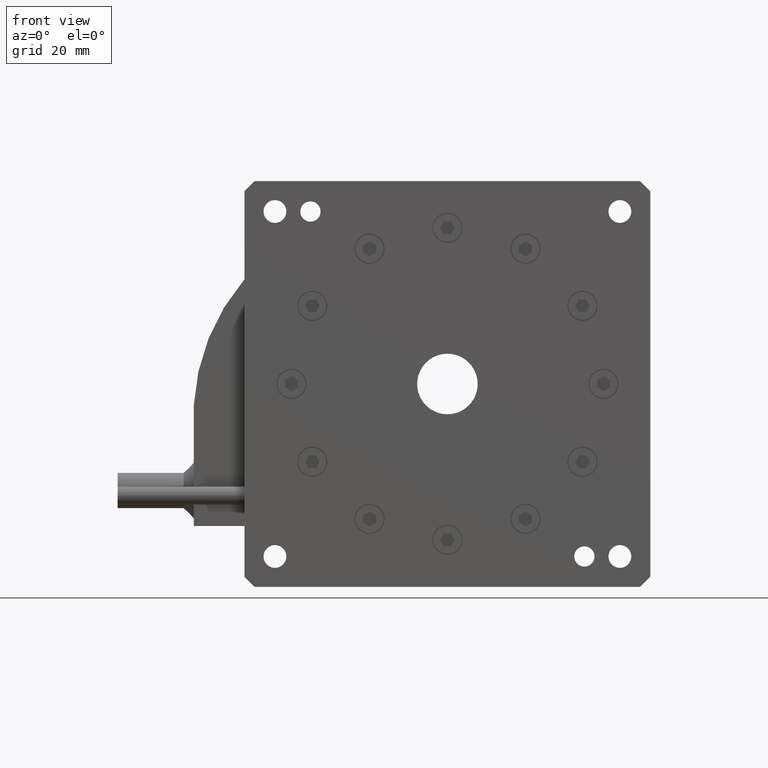
[diagram: clean part render]
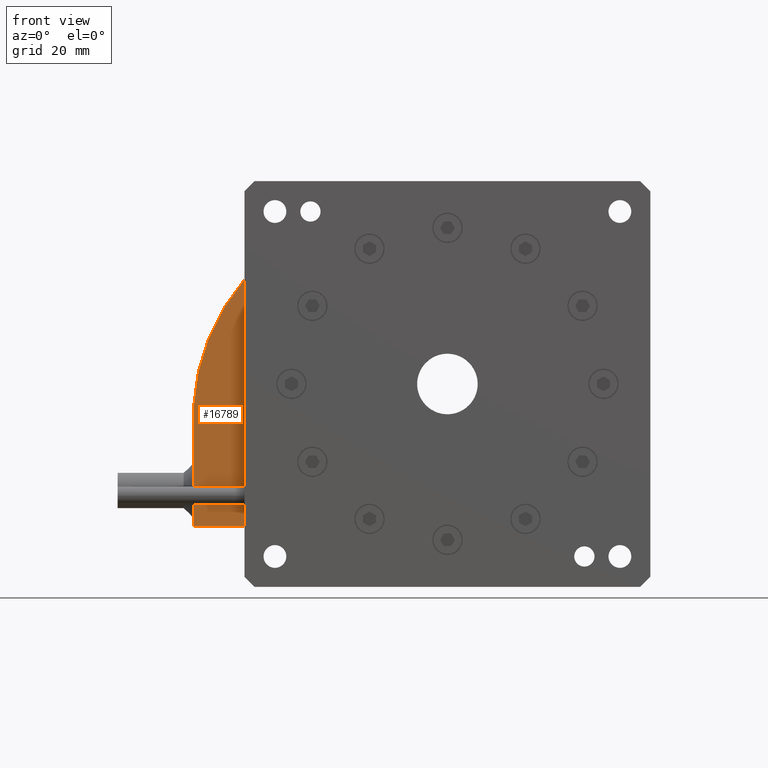
[diagram: same view with one face highlighted and labeled with its STEP entity id]
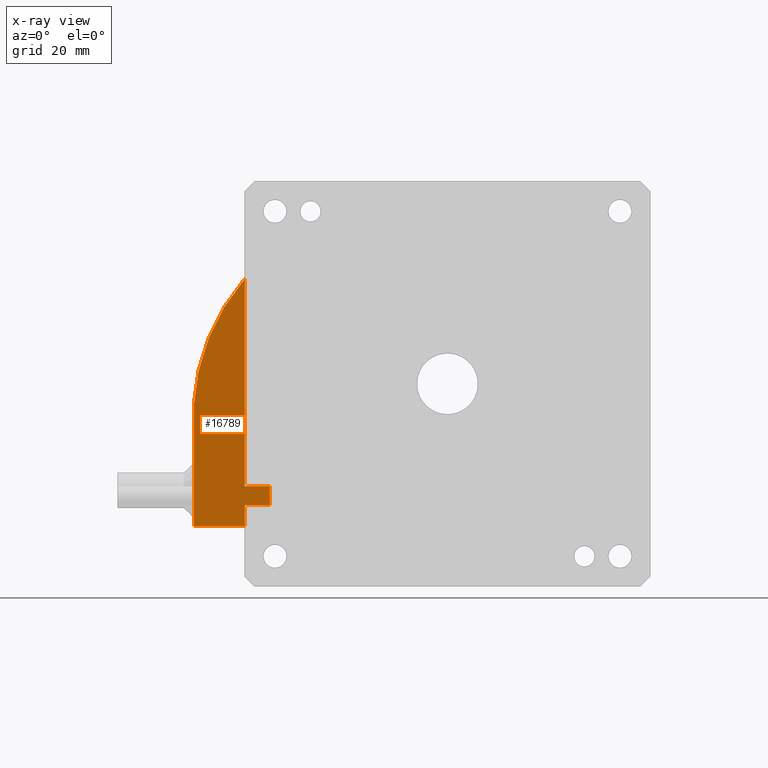
[diagram: x-ray of the same camera — body ghosted, the highlighted face saturated]
A machine part, front view. The second image highlights one B-rep face of the part: STEP entity #16789.
The next image is the same camera in x-ray: the body ghosted, the highlighted face saturated — about 0% of this face is hidden behind the body in this view.
In plain terms, the highlighted planar face has unit normal (-0, 1, -0).
Its self-contained STEP definition (entity closure, byte-faithful):
#263 = VERTEX_POINT ( 'NONE', #18896 ) ;
#327 = CARTESIAN_POINT ( 'NONE',  ( -10.00000000000000900, 10.50000000000000000, 40.00000000000001400 ) ) ;
#384 = CARTESIAN_POINT ( 'NONE',  ( -6.938893903907228400E-015, 10.50000000000000000, 80.00000000000001400 ) ) ;
#783 = LINE ( 'NONE', #10907, #15314 ) ;
#1483 = CARTESIAN_POINT ( 'NONE',  ( 39.99999999999999300, 10.50000000000000000, 40.00000000000001400 ) ) ;
#2610 = ORIENTED_EDGE ( 'NONE', *, *, #18290, .F. ) ;
#3072 = ORIENTED_EDGE ( 'NONE', *, *, #14688, .F. ) ;
#3453 = PLANE ( 'NONE',  #14177 ) ;
#3459 = EDGE_CURVE ( 'NONE', #20131, #21554, #12764, .T. ) ;
#3829 = VECTOR ( 'NONE', #17125, 1000.000000000000000 ) ;
#3952 = DIRECTION ( 'NONE',  ( -1.000000000000000000, -2.465190328815661900E-032, -3.572850611589495400E-017 ) ) ;
#3992 = CARTESIAN_POINT ( 'NONE',  ( 4.999999999999990200, 10.50000000000000000, 19.85000000000000500 ) ) ;
#4467 = VERTEX_POINT ( 'NONE', #7171 ) ;
#4509 = CARTESIAN_POINT ( 'NONE',  ( -10.00000000000001600, 10.50000000000000000, 12.00000000000001800 ) ) ;
#4817 = CARTESIAN_POINT ( 'NONE',  ( -10.00000000000000900, 10.50000000000000000, 35.75552320048093700 ) ) ;
#5063 = LINE ( 'NONE', #19293, #3829 ) ;
#5116 = ORIENTED_EDGE ( 'NONE', *, *, #18071, .F. ) ;
#5936 = VECTOR ( 'NONE', #3952, 1000.000000000000000 ) ;
#6148 = EDGE_CURVE ( 'NONE', #4467, #263, #13682, .T. ) ;
#6222 = DIRECTION ( 'NONE',  ( 3.572850611589497800E-017, -2.736911063134407700E-048, -1.000000000000000000 ) ) ;
#7171 = CARTESIAN_POINT ( 'NONE',  ( 4.999999999999990200, 10.50000000000000000, 19.85000000000000500 ) ) ;
#7308 = CARTESIAN_POINT ( 'NONE',  ( 31.49999999999999300, 10.50000000000000000, 33.50000000000001400 ) ) ;
#7869 = CARTESIAN_POINT ( 'NONE',  ( -6.938893903907228400E-015, 10.50000000000000000, 12.00000000000001800 ) ) ;
#8167 = CARTESIAN_POINT ( 'NONE',  ( -6.938893903907228400E-015, 10.50000000000000000, 16.15000000000000600 ) ) ;
#8763 = VERTEX_POINT ( 'NONE', #17444 ) ;
#9140 = DIRECTION ( 'NONE',  ( 0.0000000000000000000, 0.0000000000000000000, 1.000000000000000000 ) ) ;
#9562 = DIRECTION ( 'NONE',  ( -2.465190328815661900E-032, 1.000000000000000000, -3.617686740533762700E-048 ) ) ;
#9580 = VECTOR ( 'NONE', #6222, 1000.000000000000000 ) ;
#10282 = VECTOR ( 'NONE', #15755, 1000.000000000000000 ) ;
#10907 = CARTESIAN_POINT ( 'NONE',  ( -6.938893903907228400E-015, 10.50000000000000000, 80.00000000000001400 ) ) ;
#10975 = VECTOR ( 'NONE', #23222, 1000.000000000000000 ) ;
#11782 = LINE ( 'NONE', #13437, #5936 ) ;
#12331 = CIRCLE ( 'NONE', #22493, 41.56124859659425400 ) ;
#12764 = LINE ( 'NONE', #327, #17448 ) ;
#13437 = CARTESIAN_POINT ( 'NONE',  ( 39.99999999999999300, 10.50000000000000000, 12.00000000000002100 ) ) ;
#13682 = LINE ( 'NONE', #3992, #10282 ) ;
#13760 = LINE ( 'NONE', #17207, #10975 ) ;
#14177 = AXIS2_PLACEMENT_3D ( 'NONE', #1483, #9562, #17467 ) ;
#14688 = EDGE_CURVE ( 'NONE', #20893, #263, #783, .T. ) ;
#15000 = DIRECTION ( 'NONE',  ( 3.572850611589497800E-017, -2.736911063134407700E-048, -1.000000000000000000 ) ) ;
#15074 = EDGE_CURVE ( 'NONE', #8763, #18625, #5063, .T. ) ;
#15314 = VECTOR ( 'NONE', #15000, 1000.000000000000000 ) ;
#15598 = EDGE_CURVE ( 'NONE', #19633, #20131, #11782, .T. ) ;
#15755 = DIRECTION ( 'NONE',  ( -1.000000000000000000, -2.465190328815661900E-032, -3.572850611589495400E-017 ) ) ;
#15889 = ORIENTED_EDGE ( 'NONE', *, *, #3459, .F. ) ;
#16580 = FACE_OUTER_BOUND ( 'NONE', #21647, .T. ) ;
#16753 = EDGE_CURVE ( 'NONE', #4467, #8763, #13760, .T. ) ;
#16789 = ADVANCED_FACE ( 'NONE', ( #16580 ), #3453, .F. ) ;
#16927 = ORIENTED_EDGE ( 'NONE', *, *, #6148, .T. ) ;
#17125 = DIRECTION ( 'NONE',  ( -1.000000000000000000, -2.465190328815661900E-032, -3.572850611589495400E-017 ) ) ;
#17207 = CARTESIAN_POINT ( 'NONE',  ( 4.999999999999990200, 10.50000000000000000, 40.00000000000001400 ) ) ;
#17444 = CARTESIAN_POINT ( 'NONE',  ( 4.999999999999990200, 10.50000000000000000, 16.15000000000000600 ) ) ;
#17448 = VECTOR ( 'NONE', #18219, 1000.000000000000000 ) ;
#17467 = DIRECTION ( 'NONE',  ( -3.572850611589497800E-017, 2.736911063134407700E-048, 1.000000000000000000 ) ) ;
#18071 = EDGE_CURVE ( 'NONE', #18625, #19633, #23262, .T. ) ;
#18219 = DIRECTION ( 'NONE',  ( -3.572850611589497800E-017, 2.736911063134407700E-048, 1.000000000000000000 ) ) ;
#18290 = EDGE_CURVE ( 'NONE', #21554, #20893, #12331, .T. ) ;
#18625 = VERTEX_POINT ( 'NONE', #8167 ) ;
#18896 = CARTESIAN_POINT ( 'NONE',  ( -6.938893903907228400E-015, 10.50000000000000000, 19.85000000000000500 ) ) ;
#18957 = DIRECTION ( 'NONE',  ( -2.465190328815661900E-032, 1.000000000000000000, -3.421138828918010400E-048 ) ) ;
#19083 = ORIENTED_EDGE ( 'NONE', *, *, #15598, .F. ) ;
#19293 = CARTESIAN_POINT ( 'NONE',  ( 39.99999999999999300, 10.50000000000000000, 16.15000000000000600 ) ) ;
#19633 = VERTEX_POINT ( 'NONE', #7869 ) ;
#20131 = VERTEX_POINT ( 'NONE', #4509 ) ;
#20893 = VERTEX_POINT ( 'NONE', #24820 ) ;
#21554 = VERTEX_POINT ( 'NONE', #4817 ) ;
#21647 = EDGE_LOOP ( 'NONE', ( #2610, #15889, #19083, #5116, #25161, #24083, #16927, #3072 ) ) ;
#22493 = AXIS2_PLACEMENT_3D ( 'NONE', #7308, #18957, #9140 ) ;
#23222 = DIRECTION ( 'NONE',  ( 3.572850611589497800E-017, -2.736911063134407700E-048, -1.000000000000000000 ) ) ;
#23262 = LINE ( 'NONE', #384, #9580 ) ;
#24083 = ORIENTED_EDGE ( 'NONE', *, *, #16753, .F. ) ;
#24820 = CARTESIAN_POINT ( 'NONE',  ( -6.938893903907228400E-015, 10.50000000000000000, 60.61249499599600900 ) ) ;
#25161 = ORIENTED_EDGE ( 'NONE', *, *, #15074, .F. ) ;